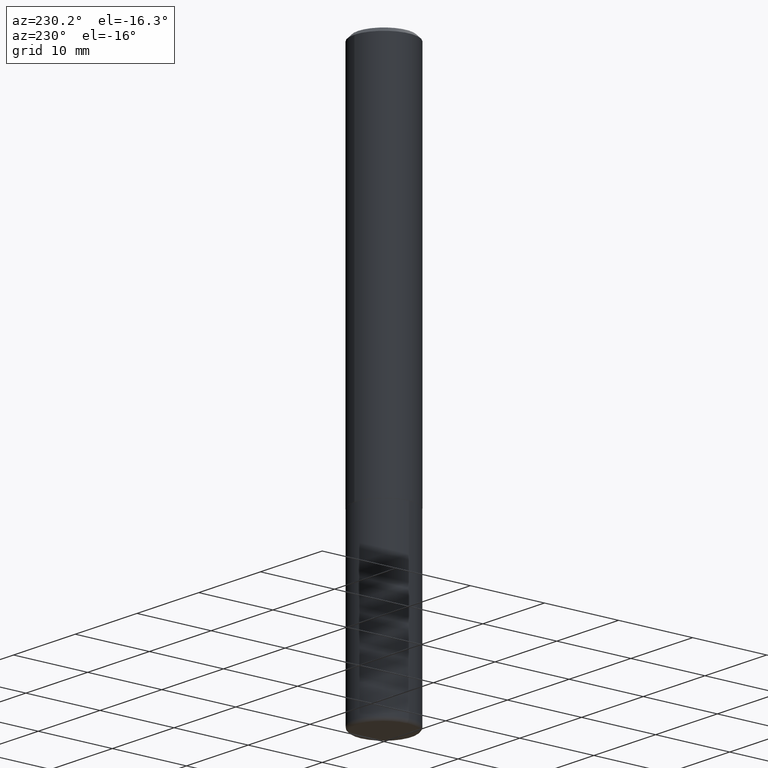
[diagram: clean part render]
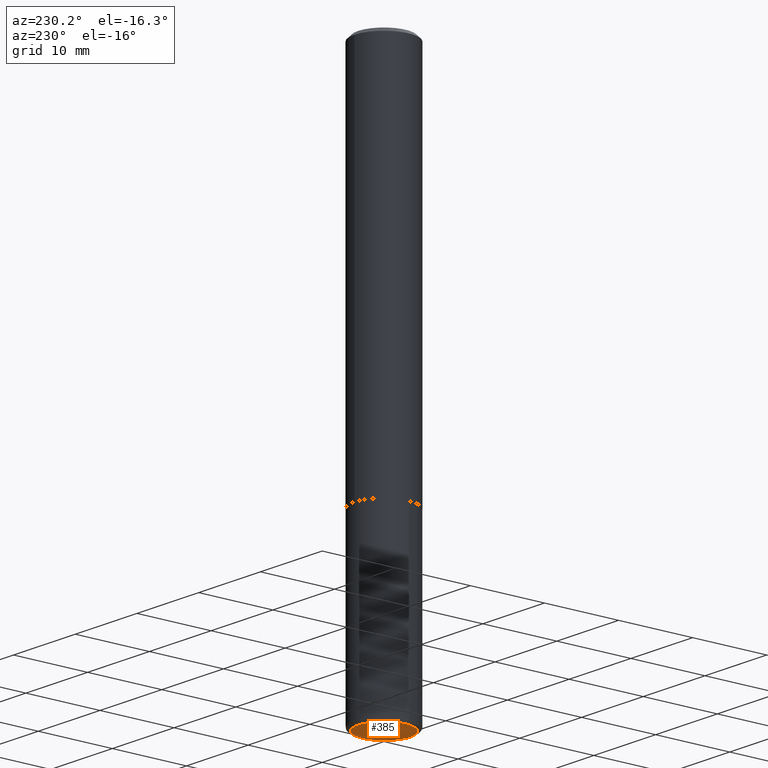
[diagram: same view with one face highlighted and labeled with its STEP entity id]
A machine part, auxiliary view. The second image highlights one B-rep face of the part: STEP entity #385.
In plain terms, the highlighted planar face has unit normal (0, -0, -1).
Its self-contained STEP definition (entity closure, byte-faithful):
#7 = CARTESIAN_POINT ( 'NONE',  ( 0.1378000000000000058, -1.127189835432120443E-14, -2.952799999999998981 ) ) ;
#21 = PLANE ( 'NONE',  #285 ) ;
#27 = CIRCLE ( 'NONE', #143, 0.1378000000000000058 ) ;
#29 = DIRECTION ( 'NONE',  ( -2.445468806185136597E-29, 3.491481338843145583E-15, 1.000000000000000000 ) ) ;
#39 = DIRECTION ( 'NONE',  ( 1.000000000000000000, -6.982962677686265922E-15, 0.000000000000000000 ) ) ;
#90 = DIRECTION ( 'NONE',  ( -2.445468806185136597E-29, 3.491481338843145583E-15, 1.000000000000000000 ) ) ;
#96 = EDGE_CURVE ( 'NONE', #127, #167, #27, .T. ) ;
#112 = CARTESIAN_POINT ( 'NONE',  ( 7.220980290903469061E-29, -1.030964609733603695E-14, -2.952799999999998981 ) ) ;
#127 = VERTEX_POINT ( 'NONE', #7 ) ;
#143 = AXIS2_PLACEMENT_3D ( 'NONE', #112, #90, #353 ) ;
#158 = CIRCLE ( 'NONE', #168, 0.1378000000000000058 ) ;
#167 = VERTEX_POINT ( 'NONE', #368 ) ;
#168 = AXIS2_PLACEMENT_3D ( 'NONE', #266, #29, #39 ) ;
#181 = ORIENTED_EDGE ( 'NONE', *, *, #209, .F. ) ;
#209 = EDGE_CURVE ( 'NONE', #167, #127, #158, .T. ) ;
#219 = CARTESIAN_POINT ( 'NONE',  ( 1.539641889943640501E-28, 1.398047307151391125E-15, -2.952799999999998981 ) ) ;
#245 = DIRECTION ( 'NONE',  ( 2.438088387897960049E-29, -3.491481338843145188E-15, -1.000000000000000000 ) ) ;
#254 = EDGE_LOOP ( 'NONE', ( #396, #181 ) ) ;
#266 = CARTESIAN_POINT ( 'NONE',  ( 7.220980290903469061E-29, -1.030964609733603695E-14, -2.952799999999998981 ) ) ;
#285 = AXIS2_PLACEMENT_3D ( 'NONE', #219, #245, #381 ) ;
#294 = FACE_OUTER_BOUND ( 'NONE', #254, .T. ) ;
#353 = DIRECTION ( 'NONE',  ( 1.000000000000000000, -6.982962677686265922E-15, 0.000000000000000000 ) ) ;
#368 = CARTESIAN_POINT ( 'NONE',  ( -0.1378000000000000058, -9.226138656798647747E-15, -2.952799999999998981 ) ) ;
#381 = DIRECTION ( 'NONE',  ( -1.000000000000000000, 6.982962677686265922E-15, -4.876176775795935793E-29 ) ) ;
#385 = ADVANCED_FACE ( 'NONE', ( #294 ), #21, .T. ) ;
#396 = ORIENTED_EDGE ( 'NONE', *, *, #96, .F. ) ;